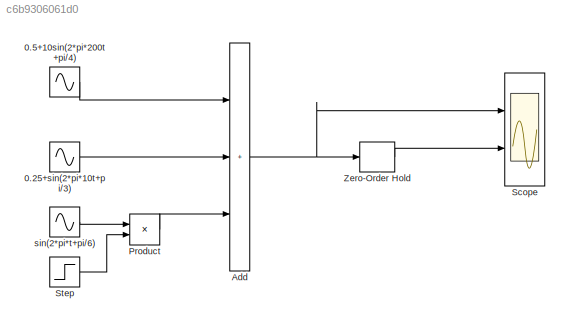
MODEL slx_c6b9306061d0
KIND model
CONFIG AbsTol = auto
CONFIG EnableMultiTasking = off
CONFIG FixedStep = 0.000001
CONFIG MaxStep = auto
CONFIG MinStep = auto
CONFIG RelTol = 1e-3
CONFIG SampleTimeConstraint = Unconstrained
CONFIG SolverName = FixedStepDiscrete
CONFIG StartTime = 0.0
CONFIG StopTime = 6
BLOCK [Sin] 0.25+sin(2*pi*10t+pi//3)
  Bias = 0.25
  Frequency = 2*pi*10
  Phase = pi/3
  Ports = [0, 1]
  SampleTime = 0
BLOCK [Sin] 0.5+10sin(2*pi*200t+pi//4)
  Amplitude = 10
  Bias = 0.5
  Frequency = 2*pi*200
  Phase = pi/4
  Ports = [0, 1]
  SampleTime = 0
BLOCK [Sum] Add
  IconShape = rectangular
  Inputs = +++
  Ports = [3, 1]
BLOCK [Product] Product
  Ports = [2, 1]
BLOCK [Scope] Scope
  Floating = off
  NumInputPorts = 2
  Ports = [2]
  ScopeSpecificationString = Simulink.scopes.TimeScopeBlockCfg('CurrentConfiguration', extmgr.ConfigurationSet(extmgr.Configuration('Core','General UI',true),extmgr.Configuration('Core','Source UI',true),extmgr.Configuration('Sources','WiredSimulink',true),extmgr.Configuration('Visuals','Time Domain',true,'SerializedDisplays',{struct('MinYLimReal','-14.24275','MaxYLimReal','15.70003','YLabelReal','','MinYLimMag','0.00000','Ma...<+1445ch>
BLOCK [Step] Step
  After = 0.5
  Before = 1
  SampleTime = 0
  Time = 3
BLOCK [ZeroOrderHold] Zero-Order Hold
  SampleTime = 0.001
BLOCK [Sin] sin(2*pi*t+pi//6)
  Frequency = 2*pi
  Phase = pi/6
  Ports = [0, 1]
  SampleTime = 0
LINE 0.25+sin(2*pi*10t+pi//3):1 -> Add:2
LINE 0.5+10sin(2*pi*200t+pi//4):1 -> Add:1
NET Add:1 -> Scope:1, Zero-Order Hold:1
LINE Product:1 -> Add:3
LINE Step:1 -> Product:2
LINE Zero-Order Hold:1 -> Scope:2
LINE sin(2*pi*t+pi//6):1 -> Product:1
note: NET lines group one-source signal fan-out (src -> all destinations, sorted); 1:1 wires keep LINE
